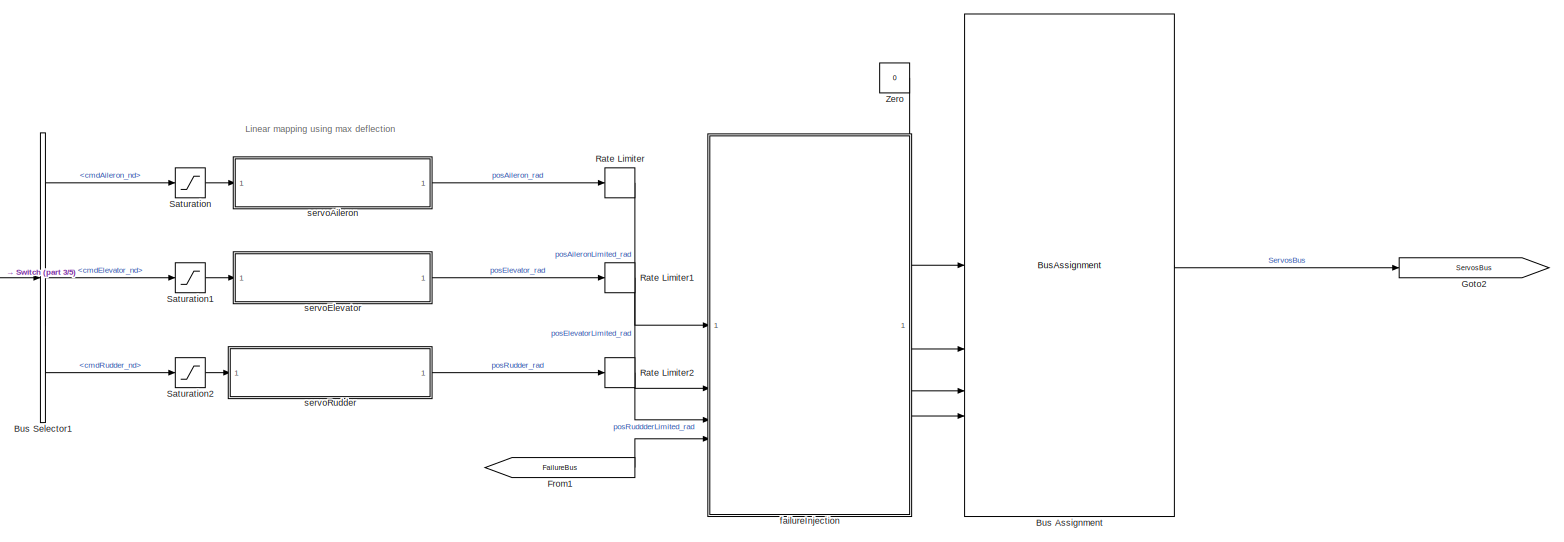
[diagram: root canvas - part 1/5, top center region]
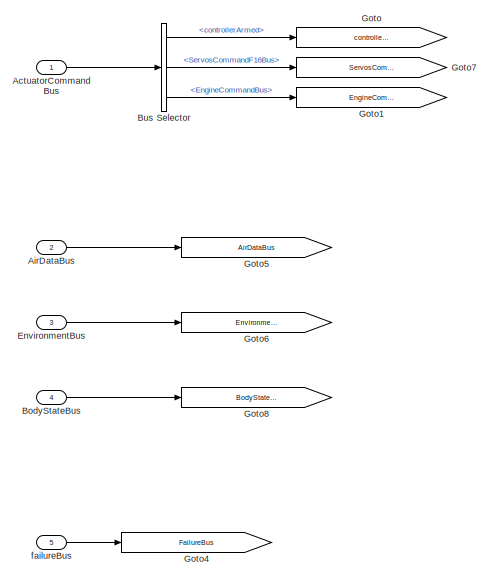
[diagram: root canvas - part 2/5, middle left region]
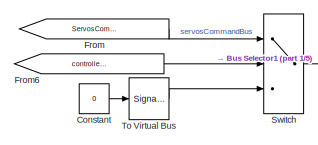
[diagram: root canvas - part 3/5, top left region]
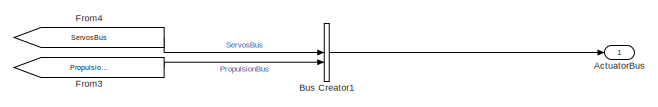
[diagram: root canvas - part 4/5, top right region]
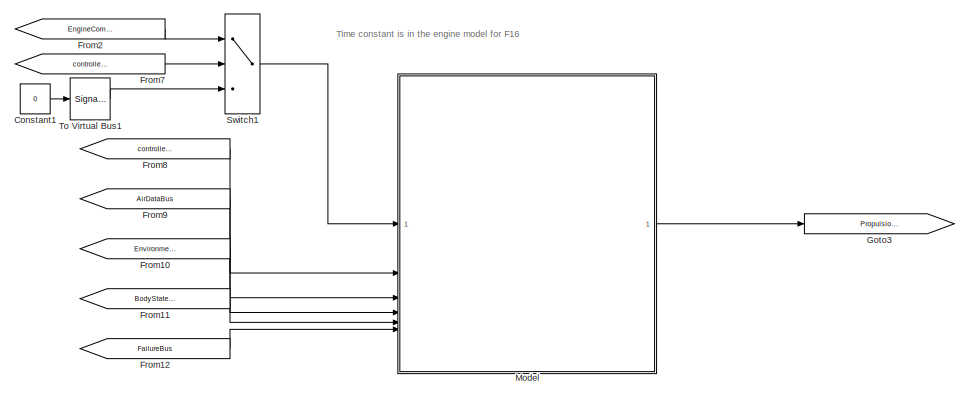
[diagram: root canvas - part 5/5, bottom center region]
MODEL slx_17bf76916dcd
KIND model
BLOCK [Outport] ActuatorBus
  OutDataTypeStr = Bus: ActuatorBus
BLOCK [Inport] ActuatorCommandBus
  OutDataTypeStr = Bus: ActuatorCommandBus
BLOCK [Inport] AirDataBus
  OutDataTypeStr = Bus: AirDataBus
  Port = 2
BLOCK [Inport] BodyStateBus
  OutDataTypeStr = Bus: BodyStateBus
  Port = 4
BLOCK [BusAssignment] Bus Assignment
  AssignedSignals = ServosF16Bus.posAileron_rad,ServosF16Bus.posElevator_rad,ServosF16Bus.posRudder_rad
BLOCK [BusCreator] Bus Creator1
  DisplayOption = bar
  InheritFromInputs = on
  Inputs = 2
  OutDataTypeStr = Bus: ActuatorBus
BLOCK [BusSelector] Bus Selector
  OutputSignals = controllerArmed,ServosCommandBus.ServosCommandF16Bus,EngineCommandBus
BLOCK [BusSelector] Bus Selector1
  OutputSignals = cmdAileron_nd,cmdElevator_nd,cmdRudder_nd
BLOCK [Constant] Constant
  OutDataTypeStr = Bus: ServosCommandF16Bus
  SampleTime = -1
  Value = 0
  VectorParams1D = off
BLOCK [Constant] Constant1
  OutDataTypeStr = Bus: EngineCommandBus
  Value = 0
BLOCK [Inport] EnvironmentBus
  OutDataTypeStr = Bus: EnvironmentBus
  Port = 3
BLOCK [From] From
  GotoTag = ServosCommandBus
BLOCK [From] From1
  GotoTag = FailureBus
BLOCK [From] From10
  GotoTag = EnvironmentBus
BLOCK [From] From11
  GotoTag = BodyStateBus
BLOCK [From] From12
  GotoTag = FailureBus
BLOCK [From] From2
  GotoTag = EngineCommandBus
BLOCK [From] From3
  GotoTag = PropulsionBus
BLOCK [From] From4
  GotoTag = ServosBus
BLOCK [From] From6
  GotoTag = controllerArmed
BLOCK [From] From7
  GotoTag = controllerArmed
BLOCK [From] From8
  GotoTag = controllerArmed
BLOCK [From] From9
  GotoTag = AirDataBus
BLOCK [Goto] Goto
  GotoTag = controllerArmed
BLOCK [Goto] Goto1
  GotoTag = EngineCommandBus
BLOCK [Goto] Goto2
  GotoTag = ServosBus
BLOCK [Goto] Goto3
  GotoTag = PropulsionBus
BLOCK [Goto] Goto4
  GotoTag = FailureBus
BLOCK [Goto] Goto5
  GotoTag = AirDataBus
BLOCK [Goto] Goto6
  GotoTag = EnvironmentBus
BLOCK [Goto] Goto7
  GotoTag = ServosCommandBus
BLOCK [Goto] Goto8
  GotoTag = BodyStateBus
BLOCK [ModelReference] Model
  ModelNameDialog = engineModelF16.slx
  ModelReferenceVersion = 1.123
BLOCK [RateLimiter] Rate Limiter
  FallingSlewLimit = -deg2rad(aileronDeflRateLimit_degps)
  RisingSlewLimit = deg2rad(aileronDeflRateLimit_degps)
  SampleTimeMode = inherited
BLOCK [RateLimiter] Rate Limiter1
  FallingSlewLimit = -deg2rad(elevatorDeflRateLimit_degps)
  RisingSlewLimit = deg2rad(elevatorDeflRateLimit_degps)
  SampleTimeMode = inherited
BLOCK [RateLimiter] Rate Limiter2
  FallingSlewLimit = deg2rad(-rudderDeflRateLimit_degps)
  RisingSlewLimit = deg2rad(rudderDeflRateLimit_degps)
  SampleTimeMode = inherited
BLOCK [Saturate] Saturation
  LowerLimit = -1
  UpperLimit = 1
BLOCK [Saturate] Saturation1
  LowerLimit = -1
  UpperLimit = 1
BLOCK [Saturate] Saturation2
  LowerLimit = -1
  UpperLimit = 1
BLOCK [Switch] Switch
  Criteria = u2 > Threshold
  InputSameDT = off
  SaturateOnIntegerOverflow = off
BLOCK [Switch] Switch1
  Criteria = u2 > Threshold
  InputSameDT = off
  SaturateOnIntegerOverflow = off
BLOCK [SignalConversion] To Virtual Bus
  ConversionOutput = Virtual bus
  OverrideOpt = off
BLOCK [SignalConversion] To Virtual Bus1
  ConversionOutput = Virtual bus
  OverrideOpt = off
BLOCK [Constant] Zero
  OutDataTypeStr = Bus: ServosBus
  Value = 0
BLOCK [Inport] failureBus
  OutDataTypeStr = Bus: FailureBus
  Port = 5
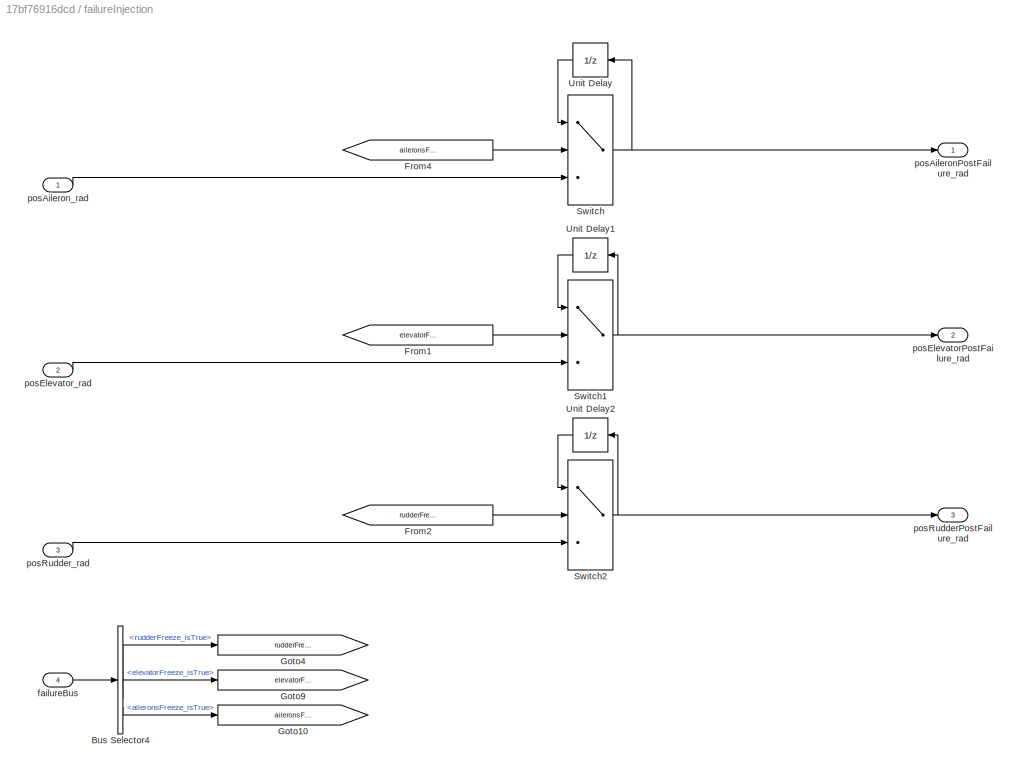
BLOCK [SubSystem] failureInjection
BLOCK [BusSelector] failureInjection/Bus Selector4
  OutputSignals = rudderFreeze_isTrue,elevatorFreeze_isTrue,aileronsFreeze_isTrue
BLOCK [From] failureInjection/From1
  GotoTag = elevatorFreeze_isTrue
BLOCK [From] failureInjection/From2
  GotoTag = rudderFreeze_isTrue
BLOCK [From] failureInjection/From4
  GotoTag = aileronsFreeze_isTrue
BLOCK [Goto] failureInjection/Goto10
  GotoTag = aileronsFreeze_isTrue
BLOCK [Goto] failureInjection/Goto4
  GotoTag = rudderFreeze_isTrue
BLOCK [Goto] failureInjection/Goto9
  GotoTag = elevatorFreeze_isTrue
BLOCK [Switch] failureInjection/Switch
  Criteria = u2 > Threshold
  InputSameDT = off
  SaturateOnIntegerOverflow = off
BLOCK [Switch] failureInjection/Switch1
  Criteria = u2 > Threshold
  InputSameDT = off
  SaturateOnIntegerOverflow = off
BLOCK [Switch] failureInjection/Switch2
  Criteria = u2 > Threshold
  InputSameDT = off
  SaturateOnIntegerOverflow = off
BLOCK [UnitDelay] failureInjection/Unit Delay
  HasFrameUpgradeWarning = on
  NameLocation = top
  SampleTime = -1
BLOCK [UnitDelay] failureInjection/Unit Delay1
  HasFrameUpgradeWarning = on
  NameLocation = top
  SampleTime = -1
BLOCK [UnitDelay] failureInjection/Unit Delay2
  HasFrameUpgradeWarning = on
  NameLocation = top
  SampleTime = -1
BLOCK [Inport] failureInjection/failureBus
  Port = 4
BLOCK [Outport] failureInjection/posAileronPostFailure_rad
BLOCK [Inport] failureInjection/posAileron_rad
BLOCK [Outport] failureInjection/posElevatorPostFailure_rad
  Port = 2
BLOCK [Inport] failureInjection/posElevator_rad
  Port = 2
BLOCK [Outport] failureInjection/posRudderPostFailure_rad
  Port = 3
BLOCK [Inport] failureInjection/posRudder_rad
  Port = 3
BLOCK [ModelReference] servoAileron
  ModelNameDialog = servo.slx
  ModelReferenceVersion = 1.21
  UsingDefaultArgumentValue = 0,0,0
  scale = deg2rad(maxAilDefl_deg)
  tfDenominator = [tauAilerons_s 1]
  tfNumerator = 1
BLOCK [ModelReference] servoElevator
  ModelNameDialog = servo.slx
  ModelReferenceVersion = 1.21
  UsingDefaultArgumentValue = 0,0,0
  scale = deg2rad(maxElevatorDefl_deg)
  tfDenominator = [tauElevator_s 1]
  tfNumerator = 1
BLOCK [ModelReference] servoRudder
  ModelNameDialog = servo.slx
  ModelReferenceVersion = 1.21
  UsingDefaultArgumentValue = 0,0,0
  scale = deg2rad(maxRudderDefl_deg)
  tfDenominator = [tauRudder_s 1]
  tfNumerator = 1
ANNOTATION (root): Linear mapping using max deflection
ANNOTATION (root): Time constant is in the engine model for F16
LINE ActuatorCommandBus:1 -> Bus Selector:1
LINE AirDataBus:1 -> Goto5:1
LINE BodyStateBus:1 -> Goto8:1
LINE Bus Assignment:1 -> Goto2:1
LINE Bus Creator1:1 -> ActuatorBus:1
LINE Bus Selector1:1 -> Saturation:1
LINE Bus Selector1:2 -> Saturation1:1
LINE Bus Selector1:3 -> Saturation2:1
LINE Bus Selector:1 -> Goto:1
LINE Bus Selector:2 -> Goto7:1
LINE Bus Selector:3 -> Goto1:1
LINE Constant1:1 -> To Virtual Bus1:1
LINE Constant:1 -> To Virtual Bus:1
LINE EnvironmentBus:1 -> Goto6:1
LINE From10:1 -> Model:4
LINE From11:1 -> Model:5
LINE From12:1 -> Model:6
LINE From1:1 -> failureInjection:4
LINE From2:1 -> Switch1:1
LINE From3:1 -> Bus Creator1:2
LINE From4:1 -> Bus Creator1:1
LINE From6:1 -> Switch:2
LINE From7:1 -> Switch1:2
LINE From8:1 -> Model:2
LINE From9:1 -> Model:3
LINE From:1 -> Switch:1
LINE Model:1 -> Goto3:1
LINE Rate Limiter1:1 -> failureInjection:2
LINE Rate Limiter2:1 -> failureInjection:3
LINE Rate Limiter:1 -> failureInjection:1
LINE Saturation1:1 -> servoElevator:1
LINE Saturation2:1 -> servoRudder:1
LINE Saturation:1 -> servoAileron:1
LINE Switch1:1 -> Model:1
LINE Switch:1 -> Bus Selector1:1
LINE To Virtual Bus1:1 -> Switch1:3
LINE To Virtual Bus:1 -> Switch:3
LINE Zero:1 -> Bus Assignment:1
LINE failureBus:1 -> Goto4:1
LINE failureInjection/Bus Selector4:1 -> failureInjection/Goto4:1
LINE failureInjection/Bus Selector4:2 -> failureInjection/Goto9:1
LINE failureInjection/Bus Selector4:3 -> failureInjection/Goto10:1
LINE failureInjection/From1:1 -> failureInjection/Switch1:2
LINE failureInjection/From2:1 -> failureInjection/Switch2:2
LINE failureInjection/From4:1 -> failureInjection/Switch:2
NET failureInjection/Switch1:1 -> failureInjection/Unit Delay1:1, failureInjection/posElevatorPostFailure_rad:1
NET failureInjection/Switch2:1 -> failureInjection/Unit Delay2:1, failureInjection/posRudderPostFailure_rad:1
NET failureInjection/Switch:1 -> failureInjection/Unit Delay:1, failureInjection/posAileronPostFailure_rad:1
LINE failureInjection/Unit Delay1:1 -> failureInjection/Switch1:1
LINE failureInjection/Unit Delay2:1 -> failureInjection/Switch2:1
LINE failureInjection/Unit Delay:1 -> failureInjection/Switch:1
LINE failureInjection/failureBus:1 -> failureInjection/Bus Selector4:1
LINE failureInjection/posAileron_rad:1 -> failureInjection/Switch:3
LINE failureInjection/posElevator_rad:1 -> failureInjection/Switch1:3
LINE failureInjection/posRudder_rad:1 -> failureInjection/Switch2:3
LINE failureInjection:1 -> Bus Assignment:2
LINE failureInjection:2 -> Bus Assignment:3
LINE failureInjection:3 -> Bus Assignment:4
LINE servoAileron:1 -> Rate Limiter:1
LINE servoElevator:1 -> Rate Limiter1:1
LINE servoRudder:1 -> Rate Limiter2:1
note: NET lines group one-source signal fan-out (src -> all destinations, sorted); 1:1 wires keep LINE
